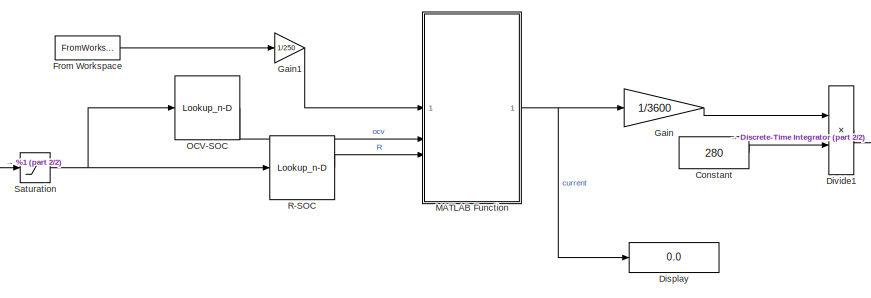
[diagram: root canvas - part 1/2, left side, full height]
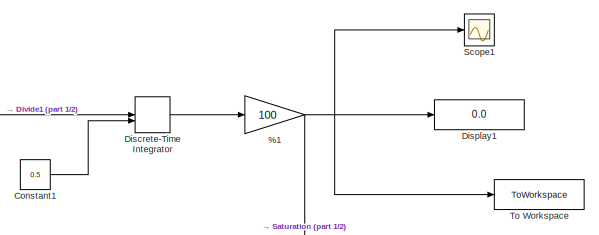
[diagram: root canvas - part 2/2, middle right region]
MODEL mdl_c15967de6841
KIND model
CONFIG AbsTol = auto
CONFIG EnableMultiTasking = off
CONFIG FixedStep = auto
CONFIG MaxStep = auto
CONFIG MinStep = auto
CONFIG RelTol = 1e-3
CONFIG SampleTimeConstraint = Unconstrained
CONFIG SolverName = VariableStepAuto
CONFIG StartTime = 0.0
CONFIG StopTime = 100
BLOCK [Gain] %1
  Gain = 100
BLOCK [Constant] Constant
  Value = 280
BLOCK [Constant] Constant1
  Value = 0.5
BLOCK [DiscreteIntegrator] Discrete-Time Integrator
  ICPrevOutput = DiscIntNeverNeededParam
  ICPrevScaledInput = DiscIntNeverNeededParam
  InitialConditionSetting = Auto
  InitialConditionSource = external
  SampleTime = -1
BLOCK [Display] Display
  Decimation = 1
BLOCK [Display] Display1
  Decimation = 1
BLOCK [Product] Divide1
  Inputs = */
BLOCK [FromWorkspace] From Workspace
  VariableName = P_test
BLOCK [Gain] Gain
  Gain = 1/3600
BLOCK [Gain] Gain1
  Gain = 1/250
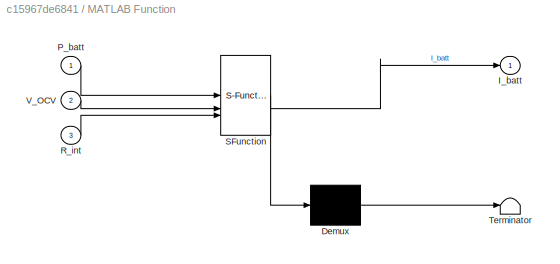
BLOCK [SubSystem] MATLAB Function
  ErrorFcn = Stateflow.Translate.translate
  PermitHierarchicalResolution = ExplicitOnly
  SFBlockType = MATLAB Function
  TreatAsAtomicUnit = on
BLOCK [Demux] MATLAB Function/ Demux 
  Outputs = 1
BLOCK [S-Function] MATLAB Function/ SFunction 
  EnableBusSupport = off
  FunctionName = sf_sfun
  PortCounts = [3 2]
  SFcnIsStateOwnerBlock = off
  SFunctionDeploymentMode = off
  Tag = Stateflow S-Function 2
BLOCK [Terminator] MATLAB Function/ Terminator 
BLOCK [Outport] MATLAB Function/I_batt
BLOCK [Inport] MATLAB Function/P_batt
BLOCK [Inport] MATLAB Function/R_int
  Port = 3
BLOCK [Inport] MATLAB Function/V_OCV
  Port = 2
BLOCK [Lookup_n-D] OCV-SOC
  BreakpointsForDimension1 = [-5:5]
  InputPortMap = u0
  InternalRulePriority = Speed
  NumberOfTableDimensions = 1
  RndMeth = Simplest
  Table = tanh([-5:5])
BLOCK [Lookup_n-D] R-SOC
  BreakpointsForDimension1 = [-5:5]
  InputPortMap = u0
  InternalRulePriority = Speed
  NumberOfTableDimensions = 1
  RndMeth = Simplest
  Table = tanh([-5:5])
BLOCK [Saturate] Saturation
  LowerLimit = 0
  UpperLimit = 100
BLOCK [Scope] Scope1
  ActiveDisplayYMaximum = 215.17892908104051
  ActiveDisplayYMinimum = -125.99987011909816
  DataLoggingVariableName = ScopeData1
  Floating = off
  GraphicalSettings = {"Style":{"BackgroundColor":[0.12941176470588237,0.12941176470588237,0.12941176470588237],"AxesColor":[0.07058823529411765,0.07058823529411765,0.07058823529411765],"LabelsColor":[0.8509803921568627,0.8509803921568627,0.8509803921568627],"PreserveColors":false,"Visible":[true],"LineStyle":["-"],"LineWidth":[1.5],"BarWidth":[0.9],"LineColor":["auto"],"LineFaceAlpha":[1],"LineEdgeAlpha":[1],"Marker":...<+2017ch>
  MultipleDisplayCache = [{"MaxYLimMag":50.021955449662983,"MaxYLimReal":215.17892908104051,"MinYLimMag":49.996775948133546,"MinYLimReal":-125.99987011909816,"PlotAsMagnitudePhase":false,"ShowGrid":true,"ShowLegend":false,"Title":"%<SignalLabel>","YLabel":""}]
  NumInputPorts = 1
  ScopeFrameLocation = window
  WasSavedAsWebScope = on
  WindowPosition = [744.000000,366.000000,560.000000,420.000000,]
BLOCK [ToWorkspace] To Workspace
  FixptAsFi = on
  MaxDataPoints = inf
  SampleTime = -1
  SaveFormat = Timeseries
  VariableName = SOC_test
NET %1:1 -> Display1:1, Saturation:1, Scope1:1, To Workspace:1
LINE Constant1:1 -> Discrete-Time Integrator:2
LINE Constant:1 -> Divide1:2
LINE Discrete-Time Integrator:1 -> %1:1
LINE Divide1:1 -> Discrete-Time Integrator:1
LINE From Workspace:1 -> Gain1:1
LINE Gain1:1 -> MATLAB Function:1
LINE Gain:1 -> Divide1:1
NET MATLAB Function:1 -> Display:1, Gain:1
LINE OCV-SOC:1 -> MATLAB Function:2
LINE R-SOC:1 -> MATLAB Function:3
NET Saturation:1 -> OCV-SOC:1, R-SOC:1
note: NET lines group one-source signal fan-out (src -> all destinations, sorted); 1:1 wires keep LINE
CHART MATLAB Function states=1 transitions=1
  STATE_LABEL 'eML_blk_kernel()'
  STATE_LABEL 'SCRIPT:\nfunction I_batt = fcn(P_batt, V_OCV, R_int)\n% =========================================================================\n% 功能: 根据单电芯功率、开路电压和内阻计算电池电流\n% 模型: V_term = V_OCV + I_batt * R_int (一阶ECM)\n% 约定: 电流 I_batt > 0 表示充电, I_batt < 0 表示放电\n% -------------------------------------------------------------------------\n% 输入:\n%   P_batt: 单个电芯的功率 (W)。P_batt > 0 表示充电, P_batt < 0 表示放电。\n%           (注意:...<+1783ch>'
CHART  states=0 transitions=0
